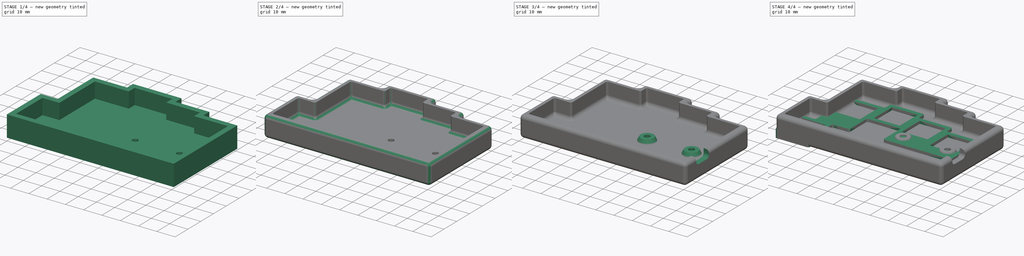
[diagram: build sequence overview — one tinted view per stage of 4, left to right]
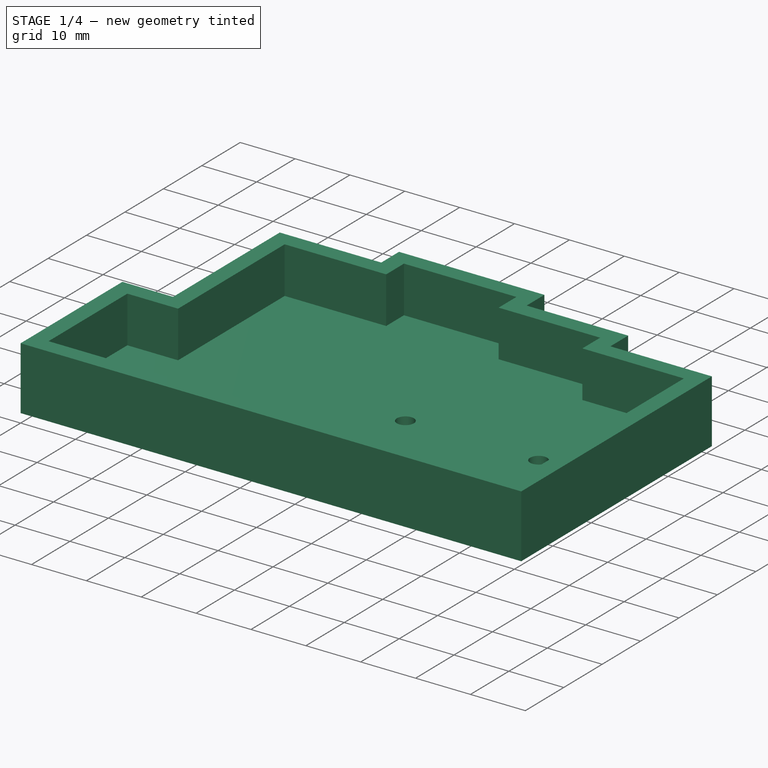
[diagram: stage 1 of 4 — iso view after this stage's code; geometry added in this stage tinted green]
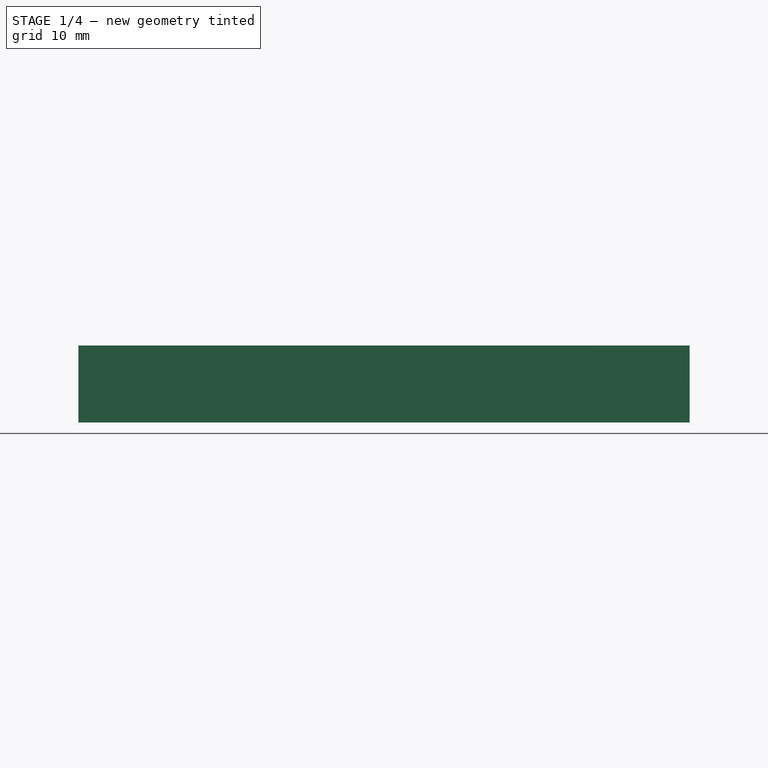
[diagram: stage 1 of 4 — front view after this stage's code; geometry added in this stage tinted green]
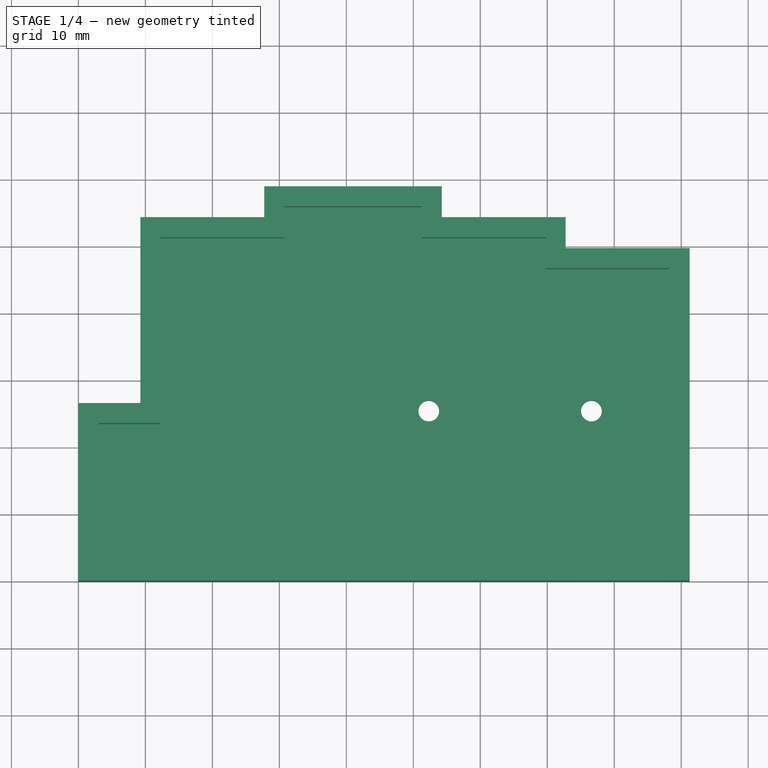
[diagram: stage 1 of 4 — top view after this stage's code; geometry added in this stage tinted green]
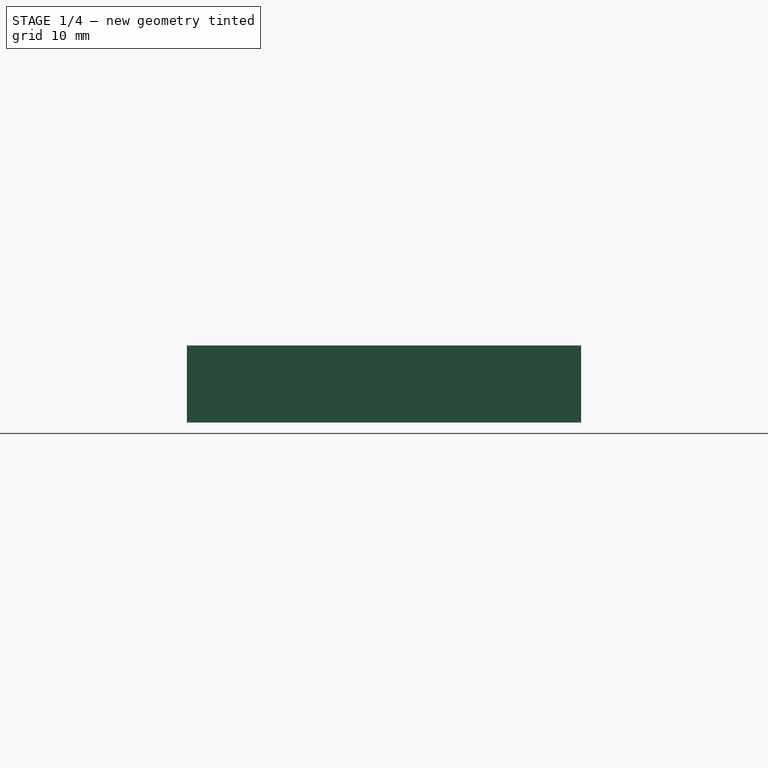
[diagram: stage 1 of 4 — right view after this stage's code; geometry added in this stage tinted green]
FCSTD DOCUMENT  (FreeCAD 0.19R)
Label: Chord03xD
License: All rights reserved
LicenseURL: http://en.wikipedia.org/wiki/All_rights_reserved
objects: Sketcher::SketchObject×5, PartDesign::Fillet×4, PartDesign::Pad×3, PartDesign::Body×2, PartDesign::Pocket×2, PartDesign::Chamfer×1
note: 27 computed .brp shape members not serialized (recipe doc carries the construction recipe); baked Part::Feature solids carry a one-line shape summary decoded from their .brp

FEATURE [PartDesign::Body] Body  label="Plate"
  Group = -> [Sketch,Pad,Fillet]
  Origin = -> Origin
  Placement = pos=(4,4,7) rot=(0,0,1;0rad)
  Tip = -> Fillet
FEATURE [Sketcher::SketchObject] Sketch001
  FullyConstrained = true
  MapMode = 5
  Support = -> [XY_Plane001]
  expr: Constraints[24] = 18.5 + 4 + 4
  expr: Constraints[26] = 0.5 * 18.5
  expr: Constraints[27] = 1.5 * 18.5
  expr: Constraints[30] = 0.25 * 18.5
  expr: Constraints[31] = 18.5 + 8
  sketch-geometry (17):
    g0: LineSegment StartX=0 StartY=0 StartZ=0 EndX=91.25 EndY=0 EndZ=0
    g1: LineSegment StartX=0 StartY=0 StartZ=0 EndX=0 EndY=26.5 EndZ=0
    g2: LineSegment StartX=0 StartY=26.5 StartZ=0 EndX=9.25 EndY=26.5 EndZ=0
    g3: LineSegment StartX=9.25 StartY=26.5 StartZ=0 EndX=9.25 EndY=54.25 EndZ=0
    g4: LineSegment StartX=9.25 StartY=54.25 StartZ=0 EndX=27.75 EndY=54.25 EndZ=0
    g5: LineSegment StartX=27.75 StartY=54.25 StartZ=0 EndX=27.75 EndY=58.875 EndZ=0
    g6: LineSegment StartX=27.75 StartY=58.875 StartZ=0 EndX=54.25 EndY=58.875 EndZ=0
    g7: LineSegment StartX=54.25 StartY=58.875 StartZ=0 EndX=54.25 EndY=54.25 EndZ=0
    g8: LineSegment StartX=54.25 StartY=54.25 StartZ=0 EndX=72.75 EndY=54.25 EndZ=0
    g9: LineSegment StartX=72.75 StartY=54.25 StartZ=0 EndX=72.75 EndY=49.625 EndZ=0
    g10: LineSegment StartX=72.75 StartY=49.625 StartZ=0 EndX=91.25 EndY=49.625 EndZ=0
    g11: LineSegment StartX=91.25 StartY=49.625 StartZ=0 EndX=91.25 EndY=0 EndZ=0
    g12: Circle CenterX=76.594 CenterY=25.455 CenterZ=0 NormalX=0 NormalY=0 NormalZ=1 AngleXU=0 Radius=1.55
    g13: Circle CenterX=52.313 CenterY=25.455 CenterZ=0 NormalX=0 NormalY=0 NormalZ=1 AngleXU=0 Radius=1.55
    g14: LineSegment StartX=52.313 StartY=25.455 StartZ=0 EndX=76.594 EndY=25.455 EndZ=0
    g15: LineSegment StartX=76.594 StartY=25.455 StartZ=0 EndX=91.25 EndY=25.455 EndZ=0
    g16: LineSegment StartX=52.313 StartY=25.455 StartZ=0 EndX=52.313 EndY=0 EndZ=0
  constraints (49):
    c: Coincident(g1,g0)
    c: Coincident(g2,g1)
    c: Horizontal(g2)
    c: Coincident(g3,g2)
    c: Vertical(g3)
    c: Coincident(g4,g3)
    c: Horizontal(g4)
    c: Coincident(g5,g4)
    c: Vertical(g5)
    c: Coincident(g6,g5)
    c: Horizontal(g6)
    c: Coincident(g7,g6)
    c: Vertical(g7)
    c: Coincident(g8,g7)
    c: Horizontal(g8)
    c: Coincident(g9,g8)
    c: Vertical(g9)
    c: Coincident(g10,g9)
    c: Horizontal(g10)
    c: Coincident(g11,g10)
    c: Vertical(g11)
    c: Coincident(g0,g11)
    c: Horizontal(g0)
    c: Vertical(g1)
    c: DistanceY(g1,g1) = 26.5
    c: Coincident(g0,g-1)
    c: DistanceX(g2,g2) = 9.25
    c: DistanceY(g3,g3) = 27.75
    c: Equal(g5,g7)
    c: Equal(g7,g9)
    c: DistanceY(g5,g5) = 4.625
    c: DistanceX(g6,g6) = 26.5
    c: DistanceX(g4,g4) = 18.5
    c: Equal(g4,g8)
    c: Equal(g8,g10)
    c: Equal(g13,g12)
    c: Diameter(g12) = 3.1
    c: Coincident(g14,g13)
    c: Coincident(g14,g12)
    c: Horizontal(g14)
    c: DistanceX(g14,g14) = 24.281
    c: Coincident(g15,g12)
    c: PointOnObject(g15,g11)
    c: Horizontal(g15)
    c: DistanceX(g15,g15) = 14.656
    c: Coincident(g16,g13)
    c: Vertical(g16)
    c: PointOnObject(g16,g0)
    c: DistanceY(g16,g16) = 25.455
FEATURE [PartDesign::Pad] Pad001
  Direction = (1,1,1)
  Length = 11.5
  Length2 = 100
  Profile = -> Sketch001
  Type = 0
  expr: Length = 3 + 4 + 4.5
FEATURE [Sketcher::SketchObject] Sketch002
  FullyConstrained = true
  MapMode = 5
  Placement = pos=(0,0,11.5) rot=(0,0,1;0rad)
  Support = -> [Pad001]
  expr: Constraints[33] = 0.25 * 18.5
  expr: Constraints[35] = 0.5 * 18.5
  expr: Constraints[36] = 1.5 * 18.5
  sketch-geometry (14):
    g0: LineSegment StartX=0 StartY=0 StartZ=0 EndX=3 EndY=0 EndZ=0
    g1: LineSegment StartX=3 StartY=0 StartZ=0 EndX=3 EndY=3 EndZ=0
    g2: LineSegment StartX=3 StartY=3 StartZ=0 EndX=3 EndY=23.5 EndZ=0
    g3: LineSegment StartX=3 StartY=23.5 StartZ=0 EndX=12.25 EndY=23.5 EndZ=0
    g4: LineSegment StartX=12.25 StartY=23.5 StartZ=0 EndX=12.25 EndY=51.25 EndZ=0
    g5: LineSegment StartX=12.25 StartY=51.25 StartZ=0 EndX=30.75 EndY=51.25 EndZ=0
    g6: LineSegment StartX=30.75 StartY=51.25 StartZ=0 EndX=30.75 EndY=55.875 EndZ=0
    g7: LineSegment StartX=30.75 StartY=55.875 StartZ=0 EndX=51.25 EndY=55.875 EndZ=0
    g8: LineSegment StartX=51.25 StartY=55.875 StartZ=0 EndX=51.25 EndY=51.25 EndZ=0
    g9: LineSegment StartX=51.25 StartY=51.25 StartZ=0 EndX=69.75 EndY=51.25 EndZ=0
    g10: LineSegment StartX=69.75 StartY=51.25 StartZ=0 EndX=69.75 EndY=46.625 EndZ=0
    g11: LineSegment StartX=69.75 StartY=46.625 StartZ=0 EndX=88.25 EndY=46.625 EndZ=0
    g12: LineSegment StartX=88.25 StartY=46.625 StartZ=0 EndX=88.25 EndY=3 EndZ=0
    g13: LineSegment StartX=88.25 StartY=3 StartZ=0 EndX=3 EndY=3 EndZ=0
  constraints (41):
    c: Coincident(g0,g-1)
    c: PointOnObject(g0,g-1)
    c: Coincident(g1,g0)
    c: Vertical(g1)
    c: Equal(g0,g1)
    c: DistanceX(g0,g0) = 3
    c: Coincident(g2,g1)
    c: Vertical(g2)
    c: Coincident(g3,g2)
    c: Horizontal(g3)
    c: Coincident(g4,g3)
    c: Vertical(g4)
    c: Coincident(g5,g4)
    c: Horizontal(g5)
    c: Coincident(g6,g5)
    c: Coincident(g7,g6)
    c: Horizontal(g7)
    c: Coincident(g8,g7)
    c: Coincident(g9,g8)
    c: Horizontal(g9)
    c: Coincident(g10,g9)
    c: Vertical(g10)
    c: Coincident(g11,g10)
    c: Horizontal(g11)
    c: Coincident(g12,g11)
    c: Vertical(g12)
    c: Coincident(g13,g12)
    c: Coincident(g13,g2)
    c: Horizontal(g13)
    c: Vertical(g8)
    c: Vertical(g6)
    c: Equal(g8,g6)
    c: Equal(g6,g10)
    c: DistanceY(g8,g8) = 4.625
    c: DistanceY(g2,g2) = 20.5
    c: DistanceX(g3,g3) = 9.25
    c: DistanceY(g4,g4) = 27.75
    c: DistanceX(g5,g5) = 18.5
    c: DistanceX(g7,g7) = 20.5
    c: Equal(g5,g9)
    c: Equal(g9,g11)
FEATURE [PartDesign::Pocket] Pocket
  BaseFeature = -> Pad001
  Length = 8.5
  Length2 = 100
  Profile = -> Sketch002
  Type = 0
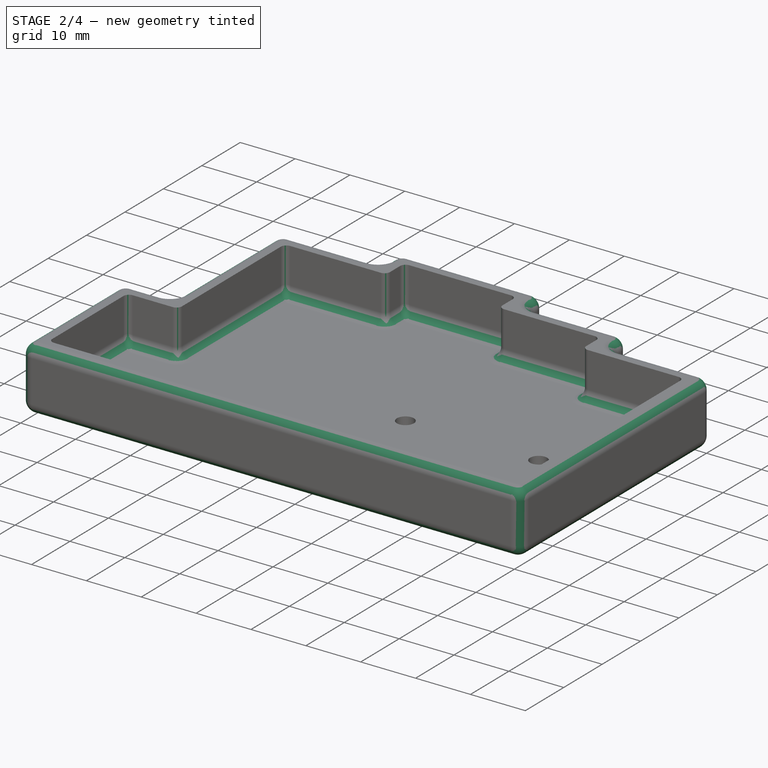
[diagram: stage 2 of 4 — iso view after this stage's code; geometry added in this stage tinted green]
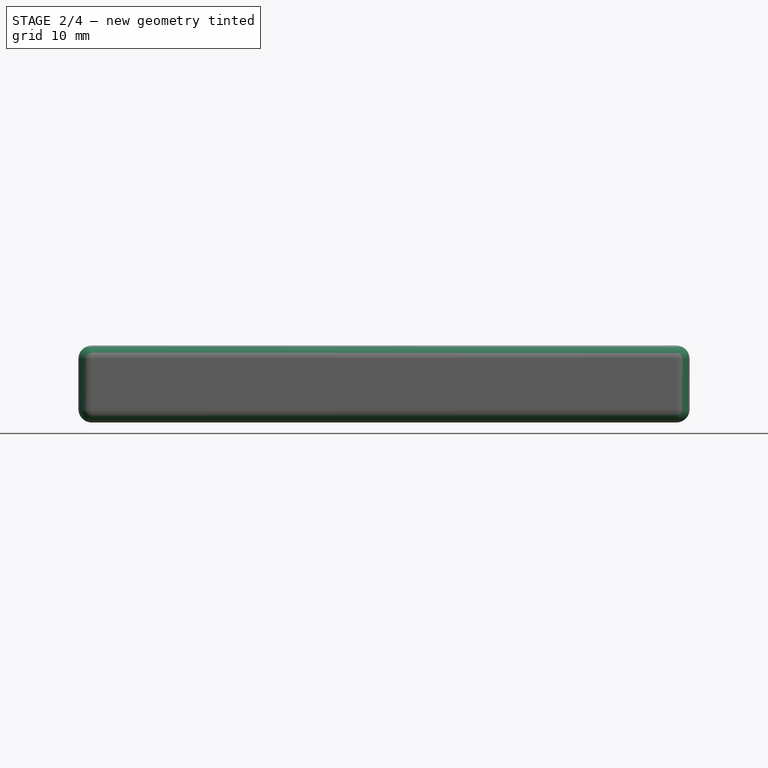
[diagram: stage 2 of 4 — front view after this stage's code; geometry added in this stage tinted green]
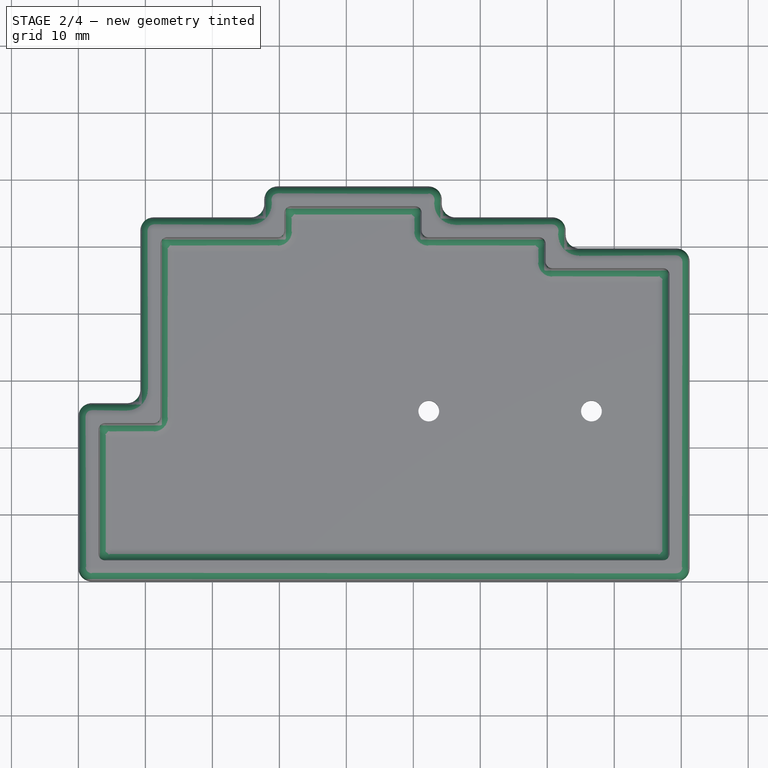
[diagram: stage 2 of 4 — top view after this stage's code; geometry added in this stage tinted green]
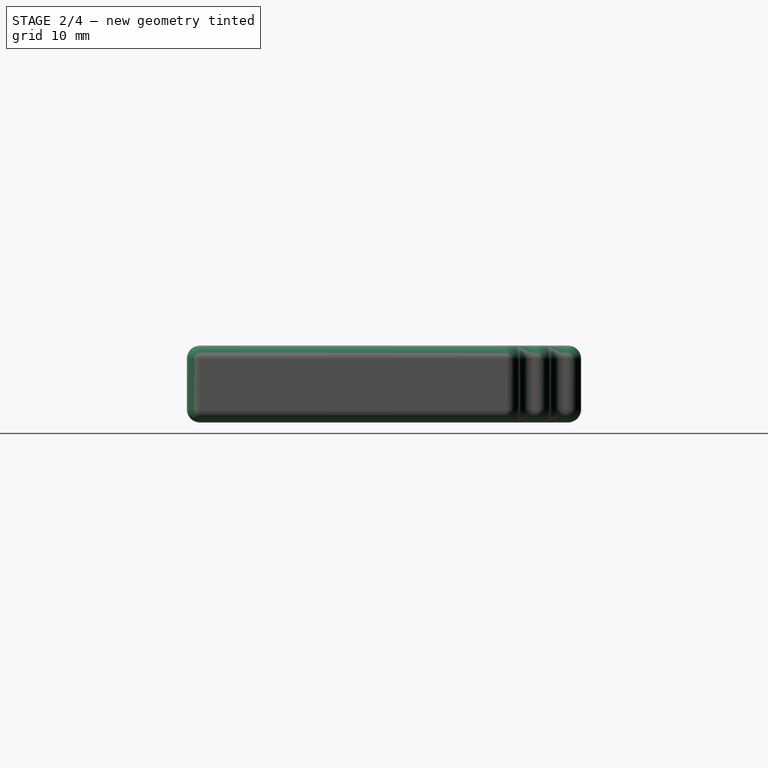
[diagram: stage 2 of 4 — right view after this stage's code; geometry added in this stage tinted green]
FEATURE [PartDesign::Fillet] Fillet001
  Base = -> Pocket [Edge1,Edge5,Edge48,Edge49,Edge50,Edge43,Edge47,Edge46,Edge45,Edge44,Edge8,Edge2]
  BaseFeature = -> Pocket
  Radius = 2
  SupportTransform = false
FEATURE [PartDesign::Fillet] Fillet002
  Base = -> Fillet001 [Edge106,Edge102,Edge100,Edge98,Edge96,Edge94,Edge112,Edge110,Edge108,Edge104,Edge91,Edge92]
  BaseFeature = -> Fillet001
  Radius = 1
  SupportTransform = false
FEATURE [PartDesign::Fillet] Fillet003
  Base = -> Fillet002 [Edge28,Edge75,Edge97]
  BaseFeature = -> Fillet002
  Radius = 2
  SupportTransform = false
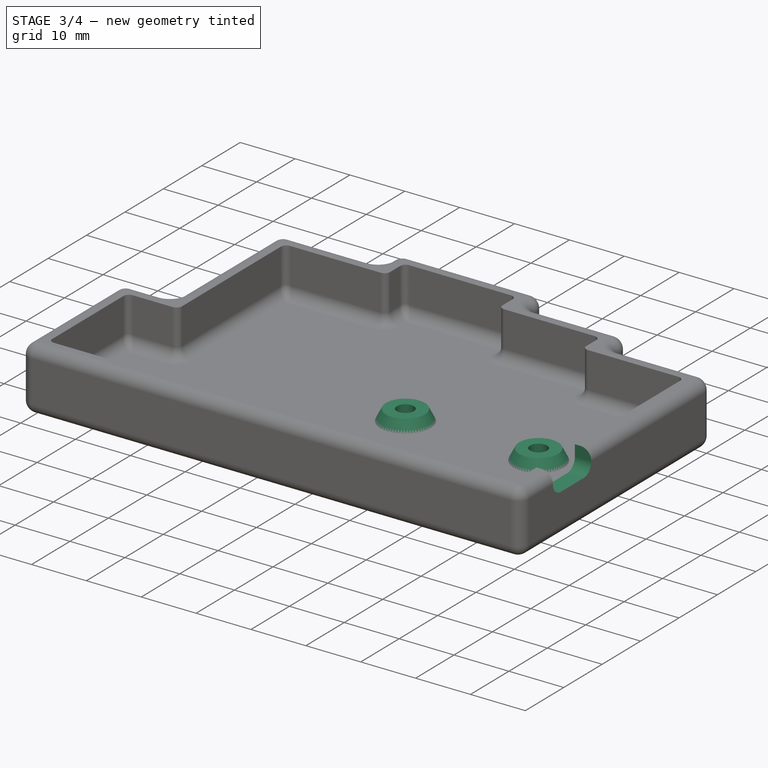
[diagram: stage 3 of 4 — iso view after this stage's code; geometry added in this stage tinted green]
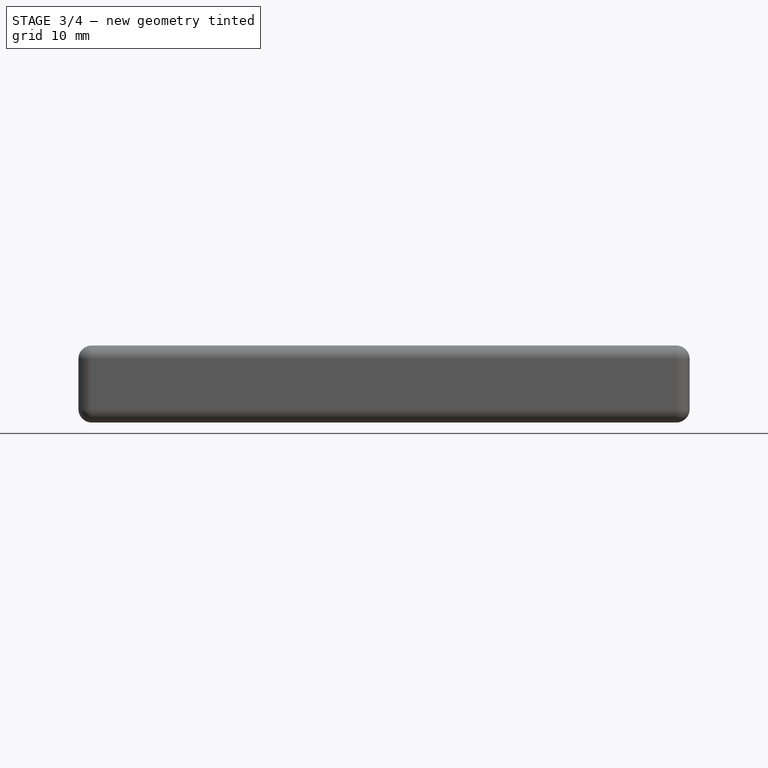
[diagram: stage 3 of 4 — front view after this stage's code; geometry added in this stage tinted green]
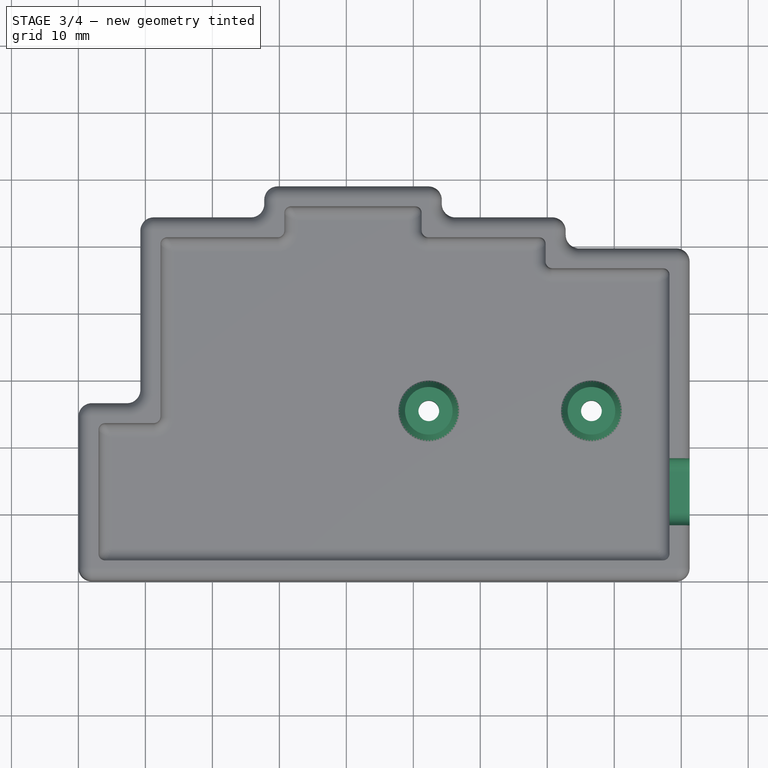
[diagram: stage 3 of 4 — top view after this stage's code; geometry added in this stage tinted green]
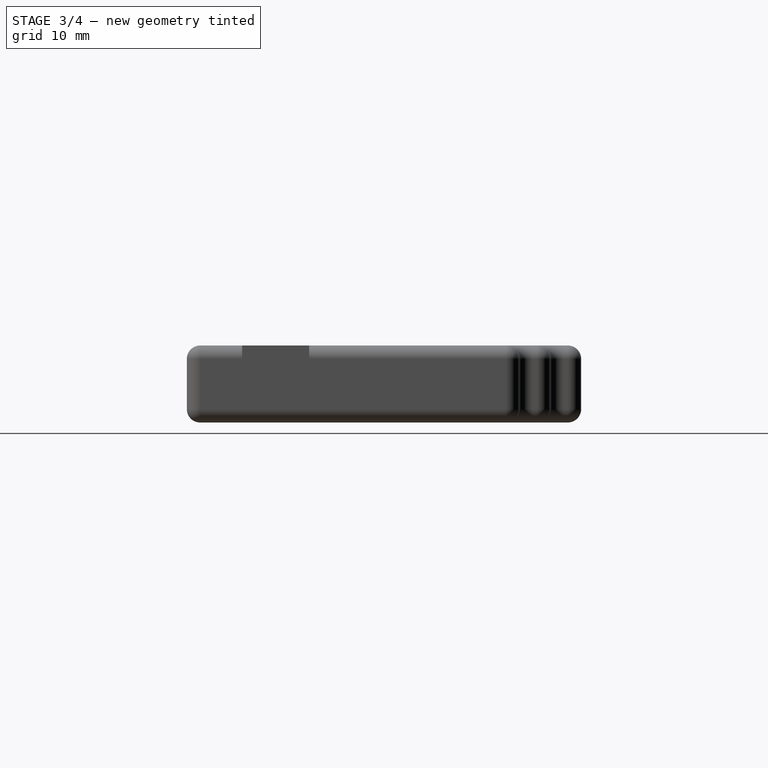
[diagram: stage 3 of 4 — right view after this stage's code; geometry added in this stage tinted green]
FEATURE [Sketcher::SketchObject] Sketch003
  ExternalGeometry = -> [Fillet003]
  FullyConstrained = true
  MapMode = 5
  Placement = pos=(0,0,3) rot=(0,0,1;0rad)
  Support = -> [Fillet003]
  sketch-geometry (4):
    g0: Circle CenterX=52.313 CenterY=25.455 CenterZ=0 NormalX=0 NormalY=0 NormalZ=1 AngleXU=0 Radius=4.55
    g1: Circle CenterX=52.313 CenterY=25.455 CenterZ=0 NormalX=0 NormalY=0 NormalZ=1 AngleXU=0 Radius=1.55
    g2: Circle CenterX=76.594 CenterY=25.455 CenterZ=0 NormalX=0 NormalY=0 NormalZ=1 AngleXU=0 Radius=1.55
    g3: Circle CenterX=76.594 CenterY=25.455 CenterZ=0 NormalX=0 NormalY=0 NormalZ=1 AngleXU=0 Radius=4.55
  constraints (8):
    c: Coincident(g0,g-3)
    c: Coincident(g1,g0)
    c: Coincident(g2,g-4)
    c: Coincident(g3,g2)
    c: Equal(g2,g1)
    c: Diameter(g2) = 3.1
    c: Equal(g0,g3)
    c: Diameter(g3) = 9.1
FEATURE [PartDesign::Pad] Pad002
  BaseFeature = -> Fillet003
  Direction = (1,1,1)
  Length = 2
  Length2 = 100
  Profile = -> Sketch003
  Type = 0
FEATURE [PartDesign::Chamfer] Chamfer
  Angle = 45
  Base = -> Pad002 [Edge294,Edge296]
  BaseFeature = -> Pad002
  ChamferType = 1
  FlipDirection = false
  Size = 1.99
  Size2 = 1
  SupportTransform = false
FEATURE [Sketcher::SketchObject] Sketch004
  FullyConstrained = true
  MapMode = 5
  Placement = pos=(88.25,0,0) rot=(0.57735,-0.57735,-0.57735;2.0944rad)
  Support = -> [Chamfer]
  expr: Constraints[4] = 4 + 18.5 / 2
  sketch-geometry (9):
    g0: LineSegment StartX=0 StartY=0 StartZ=0 EndX=0 EndY=11.5 EndZ=0
    g1: LineSegment StartX=0 StartY=11.5 StartZ=0 EndX=-13.25 EndY=11.5 EndZ=0
    g2: LineSegment StartX=-13.25 StartY=11.5 StartZ=0 EndX=-8.25 EndY=11.5 EndZ=0
    g3: LineSegment StartX=-8.25 StartY=11.5 StartZ=0 EndX=-8.25 EndY=9.5 EndZ=0
    g4: LineSegment StartX=-13.25 StartY=11.5 StartZ=0 EndX=-18.25 EndY=11.5 EndZ=0
    g5: LineSegment StartX=-18.25 StartY=11.5 StartZ=0 EndX=-18.25 EndY=9.5 EndZ=0
    g6: LineSegment StartX=-16.25 StartY=7.5 StartZ=0 EndX=-10.25 EndY=7.5 EndZ=0
    g7: ArcOfCircle CenterX=-16.25 CenterY=9.5 CenterZ=0 NormalX=0 NormalY=0 NormalZ=1 AngleXU=0 Radius=2 StartAngle=3.14159 EndAngle=4.71239
    g8: ArcOfCircle CenterX=-10.25 CenterY=9.5 CenterZ=0 NormalX=0 NormalY=0 NormalZ=1 AngleXU=0 Radius=2 StartAngle=4.71239 EndAngle=6.28319
  constraints (28):
    c: Coincident(g0,g-1)
    c: Coincident(g1,g0)
    c: DistanceY(g0,g0) = 11.5
    c: Vertical(g0)
    c: DistanceX(g1,g1) = 13.25
    c: Coincident(g2,g1)
    c: Horizontal(g2)
    c: Coincident(g3,g2)
    c: Vertical(g3)
    c: Coincident(g4,g2)
    c: Horizontal(g4)
    c: Coincident(g5,g4)
    c: Vertical(g5)
    c: Horizontal(g6)
    c: Coincident(g7,g5)
    c: Coincident(g7,g6)
    c: Coincident(g8,g6)
    c: Coincident(g8,g3)
    c: Horizontal(g3,g8)
    c: Horizontal(g8,g7)
    c: Horizontal(g7,g5)
    c: Vertical(g7,g6)
    c: Vertical(g8,g6)
    c: DistanceY(g3,g3) = 2
    c: Radius(g8) = 2
    c: Equal(g2,g4)
    c: DistanceX(g4,g4) = 5
    c: Horizontal(g1)
FEATURE [PartDesign::Pocket] Pocket001
  BaseFeature = -> Chamfer
  Length = 5
  Length2 = 100
  Profile = -> Sketch004
  Type = 0
FEATURE [PartDesign::Body] Body001  label="Case"
  Group = -> [Sketch001,Pad001,Sketch002,Pocket,Fillet001,Fillet002,Fillet003,Sketch003,Pad002,Chamfer,Sketch004,Pocket001]
  Origin = -> Origin001
  Tip = -> Pocket001
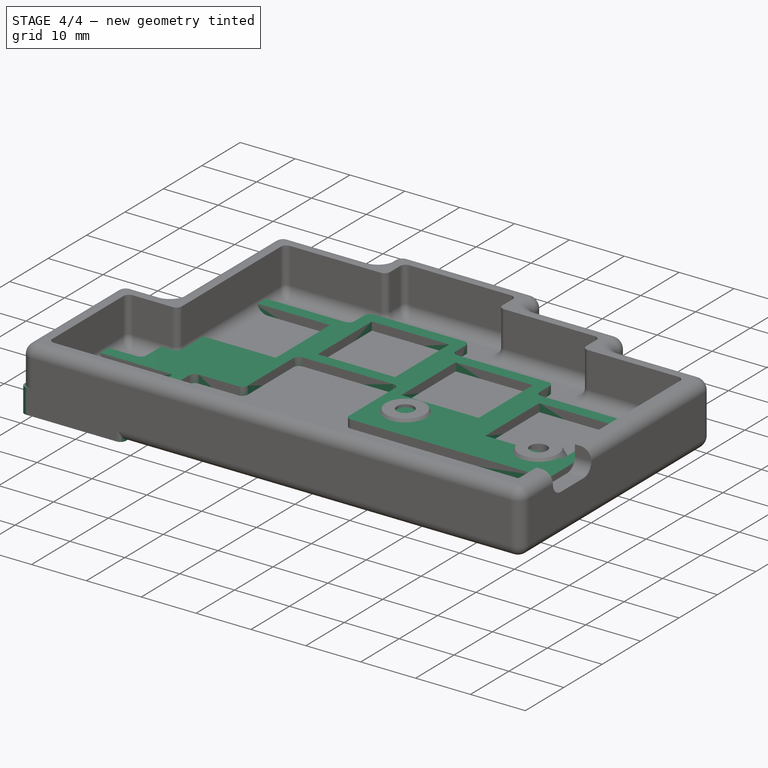
[diagram: stage 4 of 4 — iso view after this stage's code; geometry added in this stage tinted green]
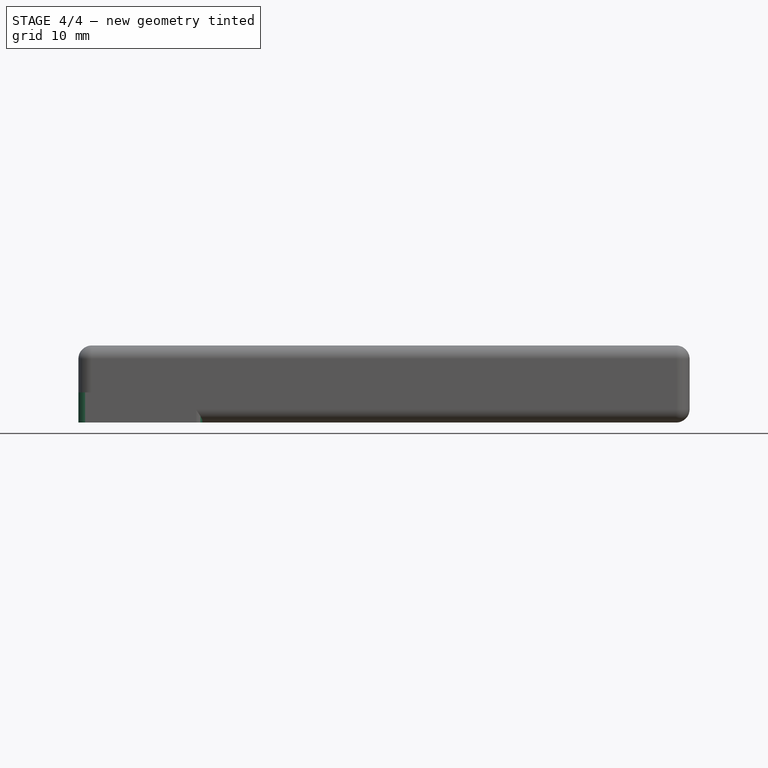
[diagram: stage 4 of 4 — front view after this stage's code; geometry added in this stage tinted green]
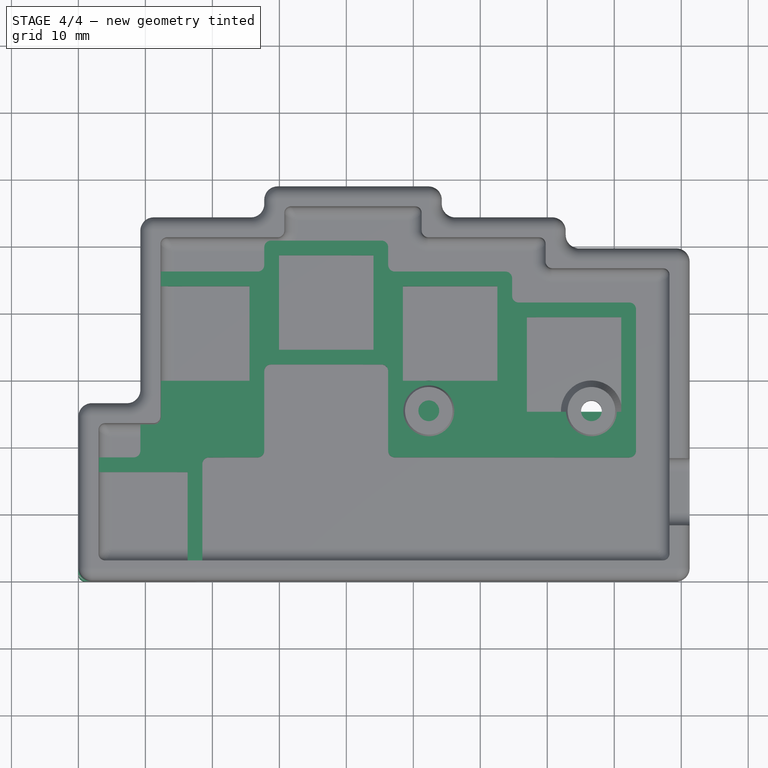
[diagram: stage 4 of 4 — top view after this stage's code; geometry added in this stage tinted green]
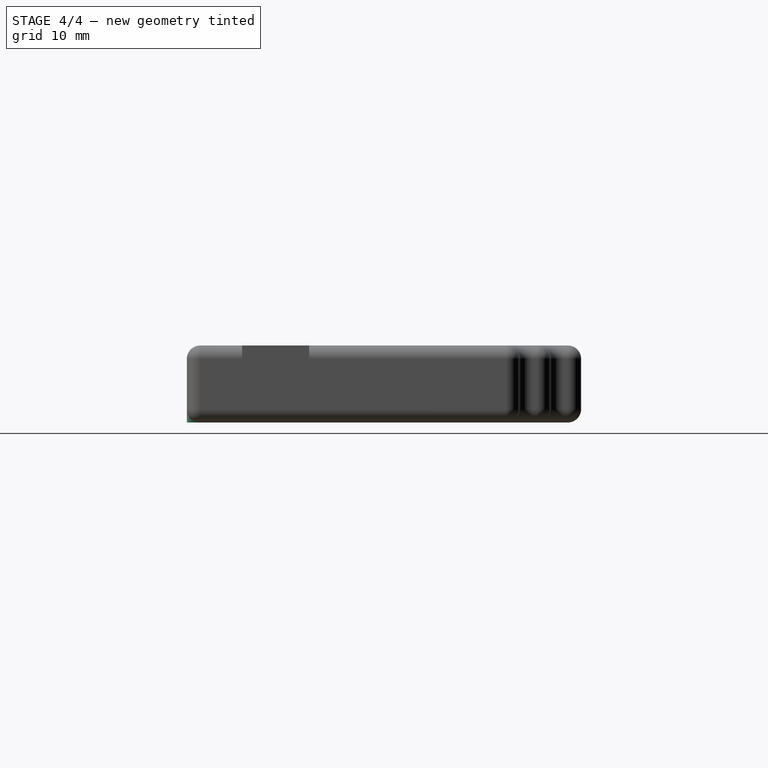
[diagram: stage 4 of 4 — right view after this stage's code; geometry added in this stage tinted green]
FEATURE [Sketcher::SketchObject] Sketch
  FullyConstrained = true
  MapMode = 5
  Support = -> [XY_Plane]
  expr: Constraints[44] = 1.25 * 18.5mm
  expr: Constraints[46] = 1.5 * 18.5mm
  expr: Constraints[49] = 0.25 * 18.5
  expr: Constraints[50] = 0.5 * 18.5
  sketch-geometry (53):
    g0: LineSegment StartX=0 StartY=0 StartZ=0 EndX=18.5 EndY=0 EndZ=0
    g1: LineSegment StartX=18.5 StartY=0 StartZ=0 EndX=18.5 EndY=18.5 EndZ=0
    g2: LineSegment StartX=18.5 StartY=18.5 StartZ=0 EndX=27.75 EndY=18.5 EndZ=0
    g3: LineSegment StartX=27.75 StartY=18.5 StartZ=0 EndX=27.75 EndY=32.375 EndZ=0
    g4: LineSegment StartX=0 StartY=0 StartZ=0 EndX=0 EndY=18.5 EndZ=0
    g5: LineSegment StartX=0 StartY=18.5 StartZ=0 EndX=9.25 EndY=18.5 EndZ=0
    g6: LineSegment StartX=9.25 StartY=18.5 StartZ=0 EndX=9.25 EndY=46.25 EndZ=0
    g7: LineSegment StartX=9.25 StartY=46.25 StartZ=0 EndX=27.75 EndY=46.25 EndZ=0
    g8: LineSegment StartX=27.75 StartY=46.25 StartZ=0 EndX=27.75 EndY=50.875 EndZ=0
    g9: LineSegment StartX=27.75 StartY=50.875 StartZ=0 EndX=46.25 EndY=50.875 EndZ=0
    g10: LineSegment StartX=46.25 StartY=50.875 StartZ=0 EndX=46.25 EndY=46.25 EndZ=0
    g11: LineSegment StartX=46.25 StartY=46.25 StartZ=0 EndX=64.75 EndY=46.25 EndZ=0
    g12: LineSegment StartX=64.75 StartY=46.25 StartZ=0 EndX=64.75 EndY=41.625 EndZ=0
    g13: LineSegment StartX=64.75 StartY=41.625 StartZ=0 EndX=83.25 EndY=41.625 EndZ=0
    g14: LineSegment StartX=83.25 StartY=41.625 StartZ=0 EndX=83.25 EndY=18.5 EndZ=0
    g15: LineSegment StartX=83.25 StartY=18.5 StartZ=0 EndX=46.25 EndY=18.5 EndZ=0
    g16: LineSegment StartX=46.25 StartY=18.5 StartZ=0 EndX=46.25 EndY=32.375 EndZ=0
    g17: LineSegment StartX=46.25 StartY=32.375 StartZ=0 EndX=27.75 EndY=32.375 EndZ=0
    g18: LineSegment StartX=46.25 StartY=50.875 StartZ=0 EndX=46.25 EndY=32.375 EndZ=0
    g19: LineSegment StartX=2.2 StartY=2.2 StartZ=0 EndX=16.3 EndY=2.2 EndZ=0
    g20: LineSegment StartX=16.3 StartY=2.2 StartZ=0 EndX=16.3 EndY=16.3 EndZ=0
    g21: LineSegment StartX=16.3 StartY=16.3 StartZ=0 EndX=2.2 EndY=16.3 EndZ=0
    g22: LineSegment StartX=2.2 StartY=16.3 StartZ=0 EndX=2.2 EndY=2.2 EndZ=0
    g23: LineSegment StartX=11.45 StartY=44.05 StartZ=0 EndX=25.55 EndY=44.05 EndZ=0
    g24: LineSegment StartX=25.55 StartY=44.05 StartZ=0 EndX=25.55 EndY=29.95 EndZ=0
    g25: LineSegment StartX=25.55 StartY=29.95 StartZ=0 EndX=11.45 EndY=29.95 EndZ=0
    g26: LineSegment StartX=11.45 StartY=29.95 StartZ=0 EndX=11.45 EndY=44.05 EndZ=0
    g27: LineSegment StartX=29.95 StartY=34.575 StartZ=0 EndX=44.05 EndY=34.575 EndZ=0
    g28: LineSegment StartX=44.05 StartY=34.575 StartZ=0 EndX=44.05 EndY=48.675 EndZ=0
    g29: LineSegment StartX=44.05 StartY=48.675 StartZ=0 EndX=29.95 EndY=48.675 EndZ=0
    g30: LineSegment StartX=29.95 StartY=48.675 StartZ=0 EndX=29.95 EndY=34.575 EndZ=0
    g31: LineSegment StartX=48.45 StartY=44.05 StartZ=0 EndX=62.55 EndY=44.05 EndZ=0
    g32: LineSegment StartX=62.55 StartY=44.05 StartZ=0 EndX=62.55 EndY=29.95 EndZ=0
    g33: LineSegment StartX=62.55 StartY=29.95 StartZ=0 EndX=48.45 EndY=29.95 EndZ=0
    g34: LineSegment StartX=48.45 StartY=29.95 StartZ=0 EndX=48.45 EndY=44.05 EndZ=0
    g35: LineSegment StartX=66.95 StartY=39.425 StartZ=0 EndX=81.05 EndY=39.425 EndZ=0
    g36: LineSegment StartX=81.05 StartY=39.425 StartZ=0 EndX=81.05 EndY=25.325 EndZ=0
    g37: LineSegment StartX=81.05 StartY=25.325 StartZ=0 EndX=66.95 EndY=25.325 EndZ=0
    g38: LineSegment StartX=66.95 StartY=25.325 StartZ=0 EndX=66.95 EndY=39.425 EndZ=0
    g39: LineSegment StartX=0 StartY=0 StartZ=0 EndX=2.2 EndY=2.2 EndZ=0
    g40: LineSegment StartX=16.3 StartY=2.2 StartZ=0 EndX=18.5 EndY=0 EndZ=0
    g41: LineSegment StartX=0 StartY=18.5 StartZ=0 EndX=2.2 EndY=16.3 EndZ=0
    g42: LineSegment StartX=9.25 StartY=46.25 StartZ=0 EndX=11.45 EndY=44.05 EndZ=0
    g43: LineSegment StartX=25.55 StartY=44.05 StartZ=0 EndX=27.75 EndY=46.25 EndZ=0
    g44: LineSegment StartX=27.75 StartY=50.875 StartZ=0 EndX=29.95 EndY=48.675 EndZ=0
    g45: LineSegment StartX=44.05 StartY=48.675 StartZ=0 EndX=46.25 EndY=50.875 EndZ=0
    g46: LineSegment StartX=29.95 StartY=34.575 StartZ=0 EndX=25.55 EndY=34.575 EndZ=0
    g47: LineSegment StartX=44.05 StartY=34.575 StartZ=0 EndX=48.45 EndY=34.575 EndZ=0
    g48: LineSegment StartX=62.55 StartY=29.95 StartZ=0 EndX=66.95 EndY=29.95 EndZ=0
    g49: LineSegment StartX=46.25 StartY=46.25 StartZ=0 EndX=48.45 EndY=44.05 EndZ=0
    g50: LineSegment StartX=62.55 StartY=44.05 StartZ=0 EndX=64.75 EndY=46.25 EndZ=0
    g51: LineSegment StartX=64.75 StartY=41.625 StartZ=0 EndX=66.95 EndY=39.425 EndZ=0
    g52: LineSegment StartX=81.05 StartY=39.425 StartZ=0 EndX=83.25 EndY=41.625 EndZ=0
  constraints (146):
    c: Coincident(g0,g-1)
    c: PointOnObject(g0,g-1)
    c: Coincident(g1,g0)
    c: Coincident(g2,g1)
    c: Horizontal(g2)
    c: Coincident(g3,g2)
    c: Coincident(g4,g0)
    c: Coincident(g5,g4)
    c: Coincident(g6,g5)
    c: Vertical(g6)
    c: Coincident(g7,g6)
    c: Horizontal(g7)
    c: Coincident(g8,g7)
    c: Vertical(g8)
    c: Coincident(g9,g8)
    c: Horizontal(g9)
    c: Coincident(g10,g9)
    c: Vertical(g10)
    c: Coincident(g11,g10)
    c: Horizontal(g11)
    c: Coincident(g12,g11)
    c: Vertical(g12)
    c: Coincident(g13,g12)
    c: Horizontal(g13)
    c: Coincident(g14,g13)
    c: Vertical(g14)
    c: Coincident(g15,g14)
    c: Horizontal(g15)
    c: Coincident(g16,g15)
    c: Vertical(g16)
    c: Coincident(g17,g16)
    c: Coincident(g17,g3)
    c: Vertical(g3)
    c: Horizontal(g17)
    c: Horizontal(g5)
    c: Vertical(g4)
    c: Vertical(g1)
    c: DistanceX(g0,g0) = 18.5
    c: Equal(g0,g4)
    c: Equal(g7,g9)
    c: Equal(g9,g11)
    c: Equal(g11,g13)
    c: Equal(g13,g0)
    c: DistanceX(g15,g15) = 37
    c: DistanceY(g14,g14) = 23.125
    c: Horizontal(g2,g15)
    c: DistanceY(g6,g6) = 27.75
    c: Equal(g8,g10)
    c: Equal(g10,g12)
    c: DistanceY(g8,g8) = 4.625
    c: DistanceX(g5,g5) = 9.25
    c: Vertical(g7,g3)
    c: Coincident(g18,g9)
    c: Coincident(g18,g16)
    c: Equal(g18,g0)
    c: Coincident(g19,g20)
    c: Coincident(g20,g21)
    c: Coincident(g21,g22)
    c: Coincident(g22,g19)
    c: Horizontal(g19)
    c: Horizontal(g21)
    c: Vertical(g20)
    c: Vertical(g22)
    c: Coincident(g23,g24)
    c: Coincident(g24,g25)
    c: Coincident(g25,g26)
    c: Coincident(g26,g23)
    c: Horizontal(g23)
    c: Horizontal(g25)
    c: Vertical(g24)
    c: Vertical(g26)
    c: Coincident(g27,g28)
    c: Coincident(g28,g29)
    c: Coincident(g29,g30)
    c: Coincident(g30,g27)
    c: Horizontal(g27)
    c: Horizontal(g29)
    c: Vertical(g28)
    c: Vertical(g30)
    c: Coincident(g31,g32)
    c: Coincident(g32,g33)
    c: Coincident(g33,g34)
    c: Coincident(g34,g31)
    c: Horizontal(g31)
    c: Horizontal(g33)
    c: Vertical(g32)
    c: Vertical(g34)
    c: Coincident(g35,g36)
    c: Coincident(g36,g37)
    c: Coincident(g37,g38)
    c: Coincident(g38,g35)
    c: Horizontal(g35)
    c: Horizontal(g37)
    c: Vertical(g36)
    c: Vertical(g38)
    c: Equal(g36,g37)
    c: Equal(g32,g33)
    c: Equal(g27,g28)
    c: Equal(g24,g25)
    c: Equal(g21,g20)
    c: Equal(g21,g25)
    c: Equal(g25,g27)
    c: Equal(g27,g33)
    c: Equal(g33,g36)
    c: DistanceX(g21,g21) = 14.1
    c: Coincident(g39,g0)
    c: Coincident(g39,g19)
    c: Coincident(g40,g19)
    c: Coincident(g40,g0)
    c: Coincident(g41,g4)
    c: Coincident(g41,g21)
    c: Coincident(g42,g6)
    c: Coincident(g42,g23)
    c: Coincident(g43,g23)
    c: Coincident(g43,g7)
    c: Coincident(g44,g8)
    c: Coincident(g44,g29)
    c: Coincident(g45,g28)
    c: Coincident(g45,g9)
    c: Coincident(g46,g27)
    c: PointOnObject(g46,g24)
    c: Horizontal(g46)
    c: Coincident(g47,g27)
    c: PointOnObject(g47,g34)
    c: Horizontal(g47)
    c: Coincident(g48,g32)
    c: PointOnObject(g48,g38)
    c: Horizontal(g48)
    c: Equal(g48,g47)
    c: Equal(g47,g46)
    c: Coincident(g49,g10)
    c: Coincident(g49,g31)
    c: Coincident(g50,g31)
    c: Coincident(g50,g11)
    c: Coincident(g51,g12)
    c: Coincident(g51,g35)
    c: Coincident(g52,g35)
    c: Coincident(g52,g13)
    c: Equal(g52,g51)
    c: Equal(g51,g50)
    c: Equal(g50,g49)
    c: Equal(g49,g45)
    c: Equal(g44,g43)
    c: Equal(g42,g41)
    c: Equal(g41,g39)
    c: Equal(g39,g40)
FEATURE [PartDesign::Pad] Pad
  Direction = (1,1,1)
  Length = 4.5
  Length2 = 100
  Profile = -> Sketch
  Type = 0
FEATURE [PartDesign::Fillet] Fillet
  Base = -> Pad [Edge50,Edge1,Edge2,Edge5,Edge8,Edge11,Edge17,Edge14,Edge20,Edge44,Edge38,Edge35,Edge32,Edge29,Edge26,Edge23,Edge41,Edge47]
  BaseFeature = -> Pad
  Radius = 1
  SupportTransform = false
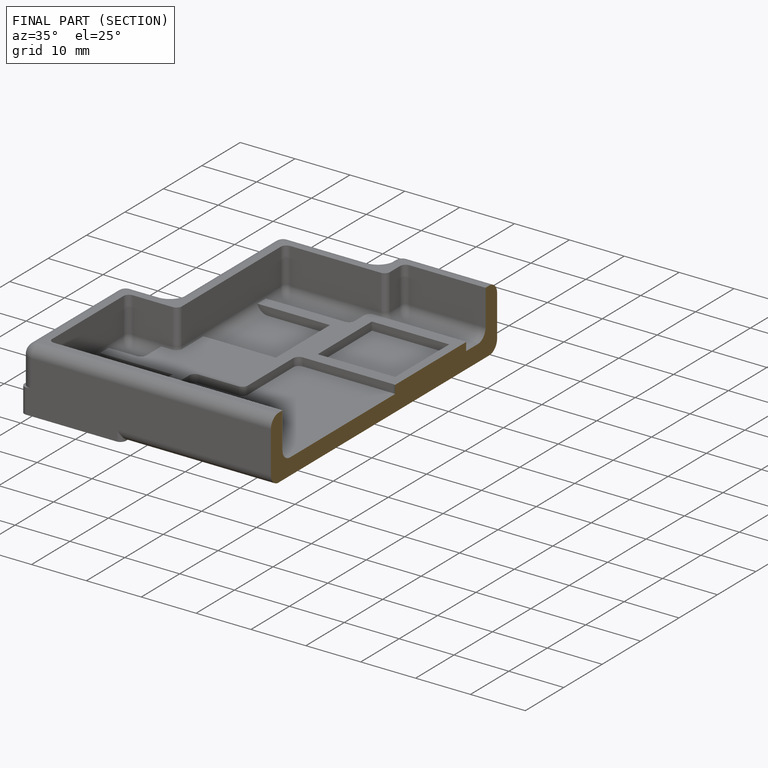
[diagram: finished part — half-section view (interior)]
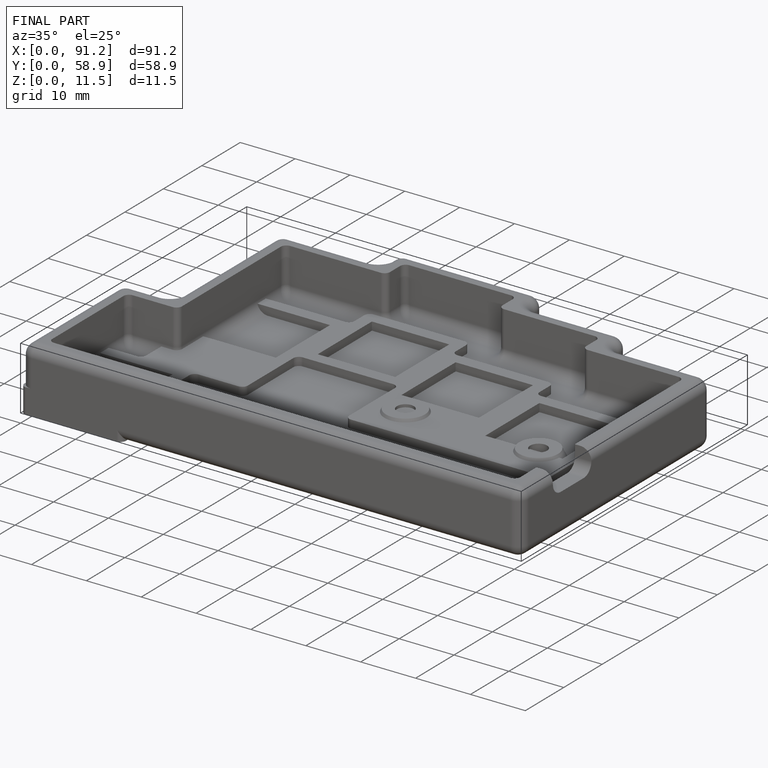
[diagram: finished part — iso view with bounding-box wireframe]
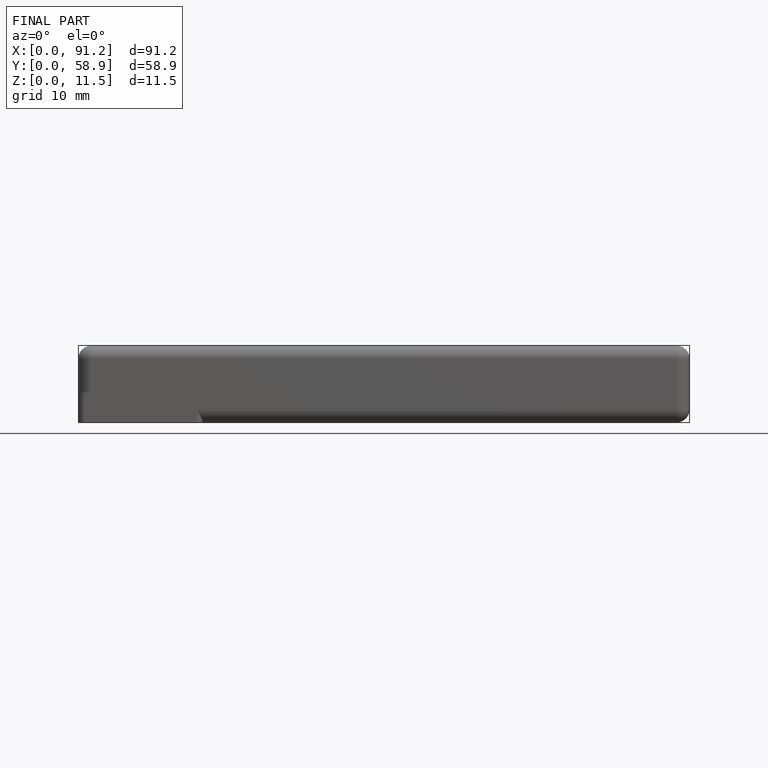
[diagram: finished part — front view with bounding-box wireframe]
